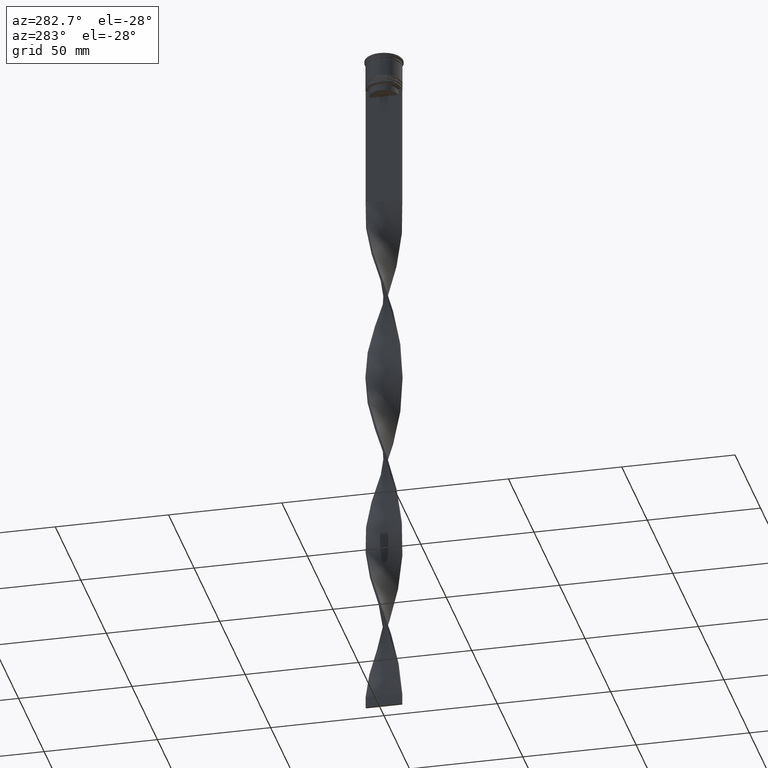
[diagram: clean part render]
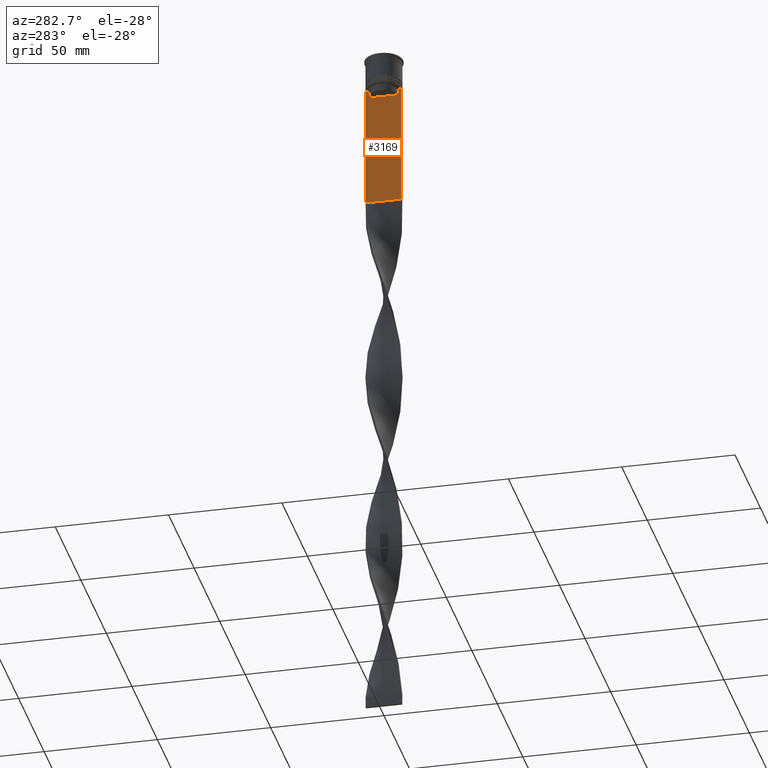
[diagram: same view with one face highlighted and labeled with its STEP entity id]
A machine part, auxiliary view. The second image highlights one B-rep face of the part: STEP entity #3169.
In plain terms, the highlighted planar face has unit normal (-1, 0, 0).
Its self-contained STEP definition (entity closure, byte-faithful):
#75 = DIRECTION ( 'NONE',  ( 0.000000000000000000, 0.000000000000000000, -1.000000000000000000 ) ) ;
#93 = VECTOR ( 'NONE', #2523, 1000.000000000000000 ) ;
#166 = CARTESIAN_POINT ( 'NONE',  ( -0.4999999999999998890, -6.881860213634098500, -14.00000000000000178 ) ) ;
#217 = VECTOR ( 'NONE', #3177, 1000.000000000000000 ) ;
#243 = CARTESIAN_POINT ( 'NONE',  ( -0.4999999999999998890, 7.884161337770806632, -14.00000000000000178 ) ) ;
#348 = EDGE_CURVE ( 'NONE', #2823, #2964, #2888, .T. ) ;
#382 = CARTESIAN_POINT ( 'NONE',  ( -0.4999999999999998890, -8.000000000000003553, 2.031219541881394530 ) ) ;
#386 = EDGE_CURVE ( 'NONE', #3642, #2721, #1895, .T. ) ;
#417 = DIRECTION ( 'NONE',  ( -1.000000000000000000, 0.000000000000000000, 0.000000000000000000 ) ) ;
#456 = PLANE ( 'NONE',  #3080 ) ;
#521 = LINE ( 'NONE', #2559, #217 ) ;
#553 = CARTESIAN_POINT ( 'NONE',  ( -0.4999999999999998890, 6.881860213634098500, -14.00000000000000178 ) ) ;
#600 = LINE ( 'NONE', #3661, #1260 ) ;
#606 = LINE ( 'NONE', #2237, #93 ) ;
#614 = VECTOR ( 'NONE', #1646, 1000.000000000000000 ) ;
#630 = CARTESIAN_POINT ( 'NONE',  ( -0.4999999999999998890, -8.000000000000003553, -68.00000000000000000 ) ) ;
#657 = CARTESIAN_POINT ( 'NONE',  ( -0.4999999999999998890, 6.714736947114692711, -14.16668390704818847 ) ) ;
#683 = ORIENTED_EDGE ( 'NONE', *, *, #3571, .F. ) ;
#749 = DIRECTION ( 'NONE',  ( 0.000000000000000000, 0.000000000000000000, -1.000000000000000000 ) ) ;
#780 = VERTEX_POINT ( 'NONE', #1270 ) ;
#890 = ORIENTED_EDGE ( 'NONE', *, *, #2891, .T. ) ;
#916 = CARTESIAN_POINT ( 'NONE',  ( -0.4999999999999998890, 6.380438856379708312, -14.50000000000000000 ) ) ;
#933 = DIRECTION ( 'NONE',  ( 0.000000000000000000, 1.000000000000000000, 0.000000000000000000 ) ) ;
#937 = EDGE_CURVE ( 'NONE', #1160, #1508, #600, .T. ) ;
#960 = CARTESIAN_POINT ( 'NONE',  ( -0.4999999999999998890, 6.399999999999999467, -17.00000000000000000 ) ) ;
#979 = LINE ( 'NONE', #382, #3213 ) ;
#985 = ORIENTED_EDGE ( 'NONE', *, *, #3908, .F. ) ;
#1160 = VERTEX_POINT ( 'NONE', #166 ) ;
#1165 = VERTEX_POINT ( 'NONE', #243 ) ;
#1213 = CARTESIAN_POINT ( 'NONE',  ( -0.4999999999999998890, 6.881860213634098500, -14.00000000000000178 ) ) ;
#1242 = CARTESIAN_POINT ( 'NONE',  ( -0.4999999999999998890, -8.000000000000003553, -14.00000000000000178 ) ) ;
#1260 = VECTOR ( 'NONE', #2565, 1000.000000000000000 ) ;
#1270 = CARTESIAN_POINT ( 'NONE',  ( -0.4999999999999998890, -6.380438856379708312, -14.50000000000000000 ) ) ;
#1331 = CARTESIAN_POINT ( 'NONE',  ( -0.4999999999999998890, -8.000000000000003553, -14.00000000000000178 ) ) ;
#1344 = CARTESIAN_POINT ( 'NONE',  ( -0.4999999999999998890, -8.000000000000003553, -14.00000000000000178 ) ) ;
#1362 = VERTEX_POINT ( 'NONE', #553 ) ;
#1367 = CARTESIAN_POINT ( 'NONE',  ( -0.4999999999999998890, 7.999999999999996447, -14.00000000000000178 ) ) ;
#1382 = ORIENTED_EDGE ( 'NONE', *, *, #2583, .F. ) ;
#1508 = VERTEX_POINT ( 'NONE', #3373 ) ;
#1577 = EDGE_CURVE ( 'NONE', #4105, #2823, #3547, .T. ) ;
#1582 = VERTEX_POINT ( 'NONE', #1367 ) ;
#1646 = DIRECTION ( 'NONE',  ( 0.000000000000000000, -1.000000000000000000, 0.000000000000000000 ) ) ;
#1695 = CARTESIAN_POINT ( 'NONE',  ( -0.4999999999999998890, 7.999999999999996447, -68.00000000000000000 ) ) ;
#1792 = CARTESIAN_POINT ( 'NONE',  ( -0.4999999999999998890, -6.380438856379708312, -14.50000000000000000 ) ) ;
#1845 = CARTESIAN_POINT ( 'NONE',  ( -0.4999999999999998890, -6.380438856379708312, -17.00000000000000000 ) ) ;
#1861 = CARTESIAN_POINT ( 'NONE',  ( -0.4999999999999998890, 6.547597841304911626, -14.33335192459222718 ) ) ;
#1895 = LINE ( 'NONE', #630, #2737 ) ;
#1962 = LINE ( 'NONE', #1331, #2013 ) ;
#2013 = VECTOR ( 'NONE', #3455, 1000.000000000000000 ) ;
#2113 = EDGE_LOOP ( 'NONE', ( #3069, #3627, #3420, #890, #3703, #4006, #1382, #2668, #683, #985, #3430, #3323 ) ) ;
#2148 = VECTOR ( 'NONE', #2757, 1000.000000000000000 ) ;
#2237 = CARTESIAN_POINT ( 'NONE',  ( -0.4999999999999998890, -8.000000000000003553, -14.00000000000000178 ) ) ;
#2332 = DIRECTION ( 'NONE',  ( 0.000000000000000000, 0.000000000000000000, 1.000000000000000000 ) ) ;
#2382 = CARTESIAN_POINT ( 'NONE',  ( -0.4999999999999998890, -8.000000000000003553, -68.00000000000000000 ) ) ;
#2447 = EDGE_CURVE ( 'NONE', #3427, #3642, #979, .T. ) ;
#2473 = CARTESIAN_POINT ( 'NONE',  ( -0.4999999999999998890, 6.380438856379708312, -17.00000000000000000 ) ) ;
#2509 = CARTESIAN_POINT ( 'NONE',  ( -0.4999999999999998890, 6.380438856379708312, -14.50000000000000000 ) ) ;
#2523 = DIRECTION ( 'NONE',  ( 0.000000000000000000, -1.000000000000000000, 0.000000000000000000 ) ) ;
#2559 = CARTESIAN_POINT ( 'NONE',  ( -0.4999999999999998890, -6.380438856379708312, 0.000000000000000000 ) ) ;
#2565 = DIRECTION ( 'NONE',  ( 0.000000000000000000, -1.000000000000000000, 0.000000000000000000 ) ) ;
#2583 = EDGE_CURVE ( 'NONE', #1508, #3427, #1962, .T. ) ;
#2588 = EDGE_CURVE ( 'NONE', #1165, #1362, #606, .T. ) ;
#2631 = FACE_OUTER_BOUND ( 'NONE', #2113, .T. ) ;
#2668 = ORIENTED_EDGE ( 'NONE', *, *, #937, .F. ) ;
#2721 = VERTEX_POINT ( 'NONE', #1695 ) ;
#2733 = LINE ( 'NONE', #3659, #2148 ) ;
#2737 = VECTOR ( 'NONE', #933, 1000.000000000000000 ) ;
#2757 = DIRECTION ( 'NONE',  ( 0.000000000000000000, 0.000000000000000000, -1.000000000000000000 ) ) ;
#2823 = VERTEX_POINT ( 'NONE', #2473 ) ;
#2888 = LINE ( 'NONE', #960, #3191 ) ;
#2891 = EDGE_CURVE ( 'NONE', #1582, #2721, #2733, .T. ) ;
#2964 = VERTEX_POINT ( 'NONE', #1845 ) ;
#2987 = CARTESIAN_POINT ( 'NONE',  ( -0.4999999999999998890, -6.714736947305992132, -14.16668390685738999 ) ) ;
#3054 = B_SPLINE_CURVE_WITH_KNOTS ( 'NONE', 3,
 ( #1213, #657, #1861, #2509 ),
 .UNSPECIFIED., .F., .F.,
 ( 4, 4 ),
 ( 0.01172465562756038263, 0.01243276816391822651 ),
 .UNSPECIFIED. ) ;
#3068 = CARTESIAN_POINT ( 'NONE',  ( -0.4999999999999998890, -6.881860213634098500, -14.00000000000000178 ) ) ;
#3069 = ORIENTED_EDGE ( 'NONE', *, *, #4026, .F. ) ;
#3080 = AXIS2_PLACEMENT_3D ( 'NONE', #3226, #417, #2332 ) ;
#3169 = ADVANCED_FACE ( 'NONE', ( #2631 ), #456, .T. ) ;
#3177 = DIRECTION ( 'NONE',  ( -0.000000000000000000, -0.000000000000000000, 1.000000000000000000 ) ) ;
#3191 = VECTOR ( 'NONE', #3218, 1000.000000000000000 ) ;
#3213 = VECTOR ( 'NONE', #75, 1000.000000000000000 ) ;
#3218 = DIRECTION ( 'NONE',  ( 0.000000000000000000, -1.000000000000000000, 0.000000000000000000 ) ) ;
#3226 = CARTESIAN_POINT ( 'NONE',  ( -0.4999999999999998890, -8.000000000000003553, 2.031219541881394530 ) ) ;
#3268 = VECTOR ( 'NONE', #749, 1000.000000000000000 ) ;
#3323 = ORIENTED_EDGE ( 'NONE', *, *, #1577, .F. ) ;
#3335 = EDGE_CURVE ( 'NONE', #1582, #1165, #3579, .T. ) ;
#3343 = B_SPLINE_CURVE_WITH_KNOTS ( 'NONE', 3,
 ( #1792, #3929, #2987, #3068 ),
 .UNSPECIFIED., .F., .F.,
 ( 4, 4 ),
 ( 0.02996184199614749730, 0.03067452609193703841 ),
 .UNSPECIFIED. ) ;
#3373 = CARTESIAN_POINT ( 'NONE',  ( -0.4999999999999998890, -7.884161337770806632, -14.00000000000000178 ) ) ;
#3420 = ORIENTED_EDGE ( 'NONE', *, *, #3335, .F. ) ;
#3427 = VERTEX_POINT ( 'NONE', #1242 ) ;
#3430 = ORIENTED_EDGE ( 'NONE', *, *, #348, .F. ) ;
#3455 = DIRECTION ( 'NONE',  ( 0.000000000000000000, -1.000000000000000000, 0.000000000000000000 ) ) ;
#3547 = LINE ( 'NONE', #3903, #3268 ) ;
#3571 = EDGE_CURVE ( 'NONE', #780, #1160, #3343, .T. ) ;
#3579 = LINE ( 'NONE', #1344, #614 ) ;
#3627 = ORIENTED_EDGE ( 'NONE', *, *, #2588, .F. ) ;
#3642 = VERTEX_POINT ( 'NONE', #2382 ) ;
#3659 = CARTESIAN_POINT ( 'NONE',  ( -0.4999999999999998890, 7.999999999999996447, 2.031219541881394530 ) ) ;
#3661 = CARTESIAN_POINT ( 'NONE',  ( -0.4999999999999998890, -8.000000000000003553, -14.00000000000000178 ) ) ;
#3703 = ORIENTED_EDGE ( 'NONE', *, *, #386, .F. ) ;
#3903 = CARTESIAN_POINT ( 'NONE',  ( -0.4999999999999998890, 6.380438856379708312, 0.000000000000000000 ) ) ;
#3908 = EDGE_CURVE ( 'NONE', #2964, #780, #521, .T. ) ;
#3929 = CARTESIAN_POINT ( 'NONE',  ( -0.4999999999999998890, -6.547597841511246131, -14.33335192438652328 ) ) ;
#4006 = ORIENTED_EDGE ( 'NONE', *, *, #2447, .F. ) ;
#4026 = EDGE_CURVE ( 'NONE', #1362, #4105, #3054, .T. ) ;
#4105 = VERTEX_POINT ( 'NONE', #916 ) ;